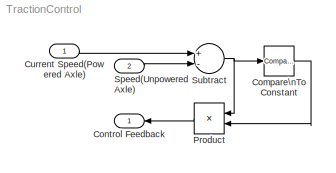
MODEL TractionControl
KIND model
BLOCK [Reference] Compare\nTo Constant  REF=simulink/Logic and Bit\nOperations/Compare\nTo Constant
  OutDataTypeStr = boolean
  Ports = [1, 1]
  SID = 2
  SourceBlock = simulink/Logic and Bit\nOperations/Compare\nTo Constant
  SourceType = Compare To Constant
  ZeroCross = on
  const = 3.0
  relop = <=
BLOCK [Outport] Control Feedback
  IconDisplay = Port number
  SID = 9
BLOCK [Inport] Current Speed(Powered Axle)
  IconDisplay = Port number
  OutDataTypeStr = single
  SID = 7
BLOCK [Product] Product
  InputSameDT = off
  OutDataTypeStr = Inherit: Inherit via internal rule
  Ports = [2, 1]
  RndMeth = Floor
  SID = 6
  SaturateOnIntegerOverflow = off
BLOCK [Inport] Speed(Unpowered Axle)
  IconDisplay = Port number
  OutDataTypeStr = single
  Port = 2
  SID = 8
BLOCK [Sum] Subtract
  InputSameDT = off
  Inputs = +-
  OutDataTypeStr = single
  Ports = [2, 1]
  SID = 1
  SaturateOnIntegerOverflow = off
LINE Compare\nTo Constant:1 -> Product:2
LINE Current Speed(Powered Axle):1 -> Subtract:1
LINE Product:1 -> Control Feedback:1
LINE Speed(Unpowered Axle):1 -> Subtract:2
NET Subtract:1 -> Compare\nTo Constant:1, Product:1
note: NET lines group one-source signal fan-out (src -> all destinations, sorted); 1:1 wires keep LINE
